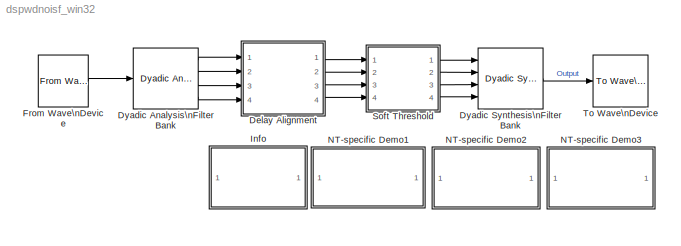
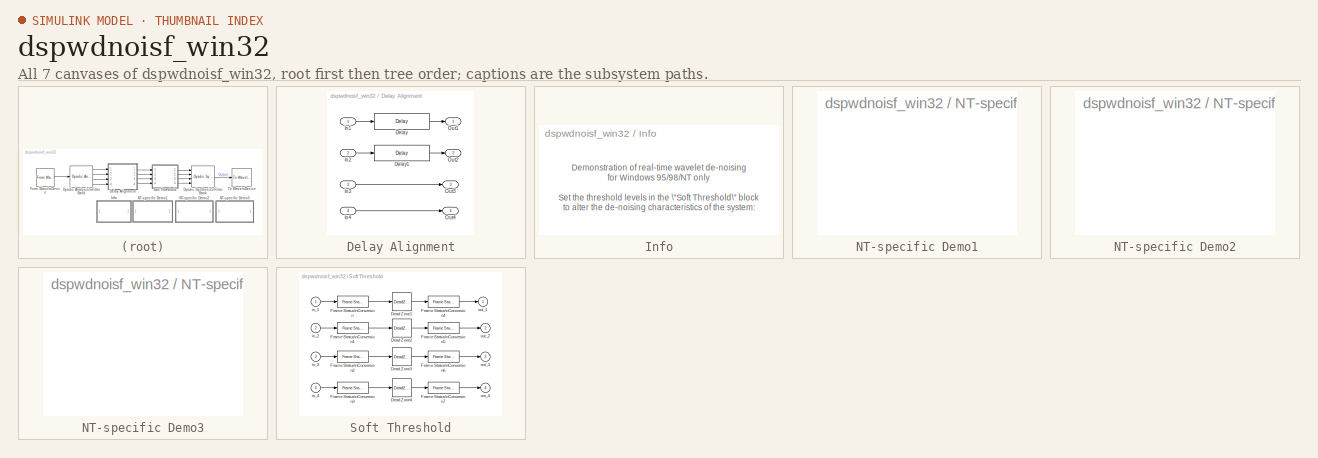
[diagram: thumbnail index - all 7 canvases of the model, root first then tree order]
MODEL dspwdnoisf_win32
KIND model
CONFIG AbsTol = auto
CONFIG FixedStep = auto
CONFIG MaxStep = auto
CONFIG MinStep = auto
CONFIG PreLoadFcn = load dspwlets;
CONFIG RelTol = 1e-3
CONFIG Solver = FixedStepDiscrete
CONFIG SolverMode = Auto
CONFIG StartTime = 0.0
CONFIG StopTime = inf
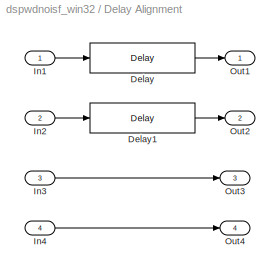
BLOCK [SubSystem] Delay Alignment
  Ports = [4, 4]
  TreatAsAtomicUnit = off
BLOCK [Reference] Delay Alignment/Delay  REF=dspsigops/Delay
  Ports = [1, 1]
  SourceBlock = dspsigops/Delay
  SourceType = Delay
  delay = 3*(length(lod)-1)
  dif_ic_for_ch = off
  dif_ic_for_dly = off
  dly_unit = Samples
  ic = 0
  ic_detail = on
  reset_popup = None
BLOCK [Reference] Delay Alignment/Delay1  REF=dspsigops/Delay
  Ports = [1, 1]
  SourceBlock = dspsigops/Delay
  SourceType = Delay
  delay = length(lod) - 1
  dif_ic_for_ch = off
  dif_ic_for_dly = off
  dly_unit = Samples
  ic = 0
  ic_detail = on
  reset_popup = None
BLOCK [Inport] Delay Alignment/In1
BLOCK [Inport] Delay Alignment/In2
  Port = 2
BLOCK [Inport] Delay Alignment/In3
  Port = 3
BLOCK [Inport] Delay Alignment/In4
  Port = 4
BLOCK [Outport] Delay Alignment/Out1
BLOCK [Outport] Delay Alignment/Out2
  Port = 2
BLOCK [Outport] Delay Alignment/Out3
  Port = 3
BLOCK [Outport] Delay Alignment/Out4
  Port = 4
BLOCK [Reference] Dyadic Analysis\nFilter Bank  REF=dspmlti4/Dyadic Analysis\nFilter Bank
  HPF = hid
  LPF = lod
  NumLevels = 3
  OrdRec_ordDec = [1 / 1]
  Order = 2
  Output = Multiple ports
  Ports = [1, 4]
  SourceBlock = dspmlti4/Dyadic Analysis\nFilter Bank
  SourceType = Dyadic Analysis Filter Bank
  Wname = User-defined
  tree = Asymmetric
BLOCK [Reference] Dyadic Synthesis\nFilter Bank  REF=dspmlti4/Dyadic Synthesis\nFilter Bank
  HPF = hir
  Input = Multiple ports
  LPF = lor
  NumLevels = 3
  OrdRec_ordDec = [1 / 1]
  Order = 2
  Ports = [4, 1]
  SourceBlock = dspmlti4/Dyadic Synthesis\nFilter Bank
  SourceType = Dyadic Synthesis Filter Bank
  Wname = User-defined
  tree = Asymmetric
BLOCK [Reference] From Wave\nDevice  REF=dspwin32/From Wave\nDevice
  Ports = [0, 1]
  QueueDuration = 2
  SampleRate = 22050
  SampleWidth = 16
  SamplesPerFrame = 128
  SourceBlock = dspwin32/From Wave\nDevice
  SourceType = From Wave Device
  Stereo = off
  UserRate = 16000
  dType = Double
  useDefaultDevice = on
BLOCK [SubSystem] Info
  MaskDisplay = disp('Info')
  MaskIconFrame = on
  MaskIconOpaque = on
  MaskIconRotate = none
  MaskIconUnits = autoscale
  MaskType = Frame-Based Simulation Info
  Ports = []
  TreatAsAtomicUnit = off
BLOCK [SubSystem] NT-specific Demo1
  MaskDisplay = disp('Sample-Based\\nDemo')
  MaskIconFrame = on
  MaskIconOpaque = on
  MaskIconRotate = none
  MaskIconUnits = autoscale
  MaskType = Sample-Based Demo
  OpenFcn = dspwdnois
  Ports = []
  TreatAsAtomicUnit = off
BLOCK [SubSystem] NT-specific Demo2
  MaskDisplay = disp('Frame-Based\\nDemo')
  MaskIconFrame = on
  MaskIconOpaque = on
  MaskIconRotate = none
  MaskIconUnits = autoscale
  MaskType = Frame-Based Demo
  OpenFcn = dspwdnoisf
  Ports = []
  TreatAsAtomicUnit = off
BLOCK [SubSystem] NT-specific Demo3
  MaskDisplay = disp('Fixed-Point\\nDemo')
  MaskIconFrame = on
  MaskIconOpaque = on
  MaskIconRotate = none
  MaskIconUnits = autoscale
  MaskType = Fixed-Point Demo
  OpenFcn = dspwdnoisfp
  Ports = []
  TreatAsAtomicUnit = off
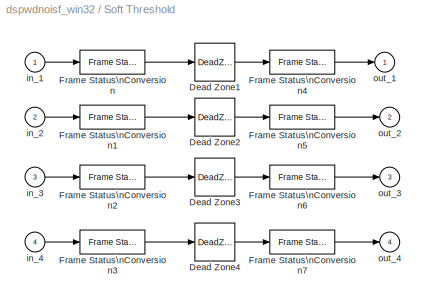
BLOCK [SubSystem] Soft Threshold
  MaskDescription = Apply a soft threshold (deadzone transfer function) to each signal in the decomposition.  First threshold applies to top-most filter bank output.
  MaskDisplay = text(.1,.9,'Dead Zone')\nplot(x,y)
  MaskEnableString = on
  MaskHelp = Vector of thresholds for each decomposition level.\n
  MaskIconFrame = on
  MaskIconOpaque = on
  MaskIconRotate = none
  MaskIconUnits = normalized
  MaskInitialization = x=([-1 1 NaN 0 0 NaN -1 -.5 .5 1]+1)/2*.7+.15;\ny=([0 0 NaN -1 1 NaN -1 0 0 1]+1)/2*.7+.05;
  MaskPromptString = Vector of thresholds for each level:
  MaskStyleString = edit
  MaskToolTipString = on
  MaskTunableValueString = on
  MaskType = Soft Threshold
  MaskValueString = [3 2 1 0]
  MaskVariables = st=@1;
  MaskVisibilityString = on
  Ports = [4, 4]
  ShowPortLabels = off
  TreatAsAtomicUnit = off
BLOCK [DeadZone] Soft Threshold/Dead Zone1
  LowerValue = -st(1)
  UpperValue = st(1)
  ZeroCross = off
BLOCK [DeadZone] Soft Threshold/Dead Zone2
  LowerValue = -st(2)
  UpperValue = st(2)
  ZeroCross = off
BLOCK [DeadZone] Soft Threshold/Dead Zone3
  LowerValue = -st(3)
  UpperValue = st(3)
  ZeroCross = off
BLOCK [DeadZone] Soft Threshold/Dead Zone4
  LowerValue = -st(4)
  UpperValue = st(4)
  ZeroCross = off
BLOCK [Reference] Soft Threshold/Frame Status\nConversion  REF=dspsigattribs/Frame Status\nConversion
  Ports = [1, 1]
  SourceBlock = dspsigattribs/Frame Status\nConversion
  SourceType = Frame Status Conversion
  growRefPort = off
  outframe = Sample-based
BLOCK [Reference] Soft Threshold/Frame Status\nConversion1  REF=dspsigattribs/Frame Status\nConversion
  Ports = [1, 1]
  SourceBlock = dspsigattribs/Frame Status\nConversion
  SourceType = Frame Status Conversion
  growRefPort = off
  outframe = Sample-based
BLOCK [Reference] Soft Threshold/Frame Status\nConversion2  REF=dspsigattribs/Frame Status\nConversion
  Ports = [1, 1]
  SourceBlock = dspsigattribs/Frame Status\nConversion
  SourceType = Frame Status Conversion
  growRefPort = off
  outframe = Sample-based
BLOCK [Reference] Soft Threshold/Frame Status\nConversion3  REF=dspsigattribs/Frame Status\nConversion
  Ports = [1, 1]
  SourceBlock = dspsigattribs/Frame Status\nConversion
  SourceType = Frame Status Conversion
  growRefPort = off
  outframe = Sample-based
BLOCK [Reference] Soft Threshold/Frame Status\nConversion4  REF=dspsigattribs/Frame Status\nConversion
  Ports = [1, 1]
  SourceBlock = dspsigattribs/Frame Status\nConversion
  SourceType = Frame Status Conversion
  growRefPort = off
  outframe = Frame-based
BLOCK [Reference] Soft Threshold/Frame Status\nConversion5  REF=dspsigattribs/Frame Status\nConversion
  Ports = [1, 1]
  SourceBlock = dspsigattribs/Frame Status\nConversion
  SourceType = Frame Status Conversion
  growRefPort = off
  outframe = Frame-based
BLOCK [Reference] Soft Threshold/Frame Status\nConversion6  REF=dspsigattribs/Frame Status\nConversion
  Ports = [1, 1]
  SourceBlock = dspsigattribs/Frame Status\nConversion
  SourceType = Frame Status Conversion
  growRefPort = off
  outframe = Frame-based
BLOCK [Reference] Soft Threshold/Frame Status\nConversion7  REF=dspsigattribs/Frame Status\nConversion
  Ports = [1, 1]
  SourceBlock = dspsigattribs/Frame Status\nConversion
  SourceType = Frame Status Conversion
  growRefPort = off
  outframe = Frame-based
BLOCK [Inport] Soft Threshold/in_1
BLOCK [Inport] Soft Threshold/in_2
  Port = 2
BLOCK [Inport] Soft Threshold/in_3
  Port = 3
BLOCK [Inport] Soft Threshold/in_4
  Port = 4
BLOCK [Outport] Soft Threshold/out_1
  InitialOutput = 0
BLOCK [Outport] Soft Threshold/out_2
  InitialOutput = 0
  Port = 2
BLOCK [Outport] Soft Threshold/out_3
  InitialOutput = 0
  Port = 3
BLOCK [Outport] Soft Threshold/out_4
  InitialOutput = 0
  Port = 4
BLOCK [Reference] To Wave\nDevice  REF=dspwin32/To Wave\nDevice
  Ports = [1]
  SourceBlock = dspwin32/To Wave\nDevice
  SourceType = To Wave Device
  bufDuration = 2
  enable24Bit = off
  initDelay = 0.1
  useDefaultDevice = on
ANNOTATION Info: Demonstration of real-time wavelet de-noising\nfor Windows 95/98/NT only\n\nSet the threshold levels in the \"Soft Threshold\" block\nto alter the de-noising characteristics of the system:\n\nThreshold=[0 0 0 0] -> No de-noising\n(perfect reconstruction)\n\nThreshold=[3 2 1 0] -> Moderate de-noising\n(removes small-scale content from signal)\n\n\nIf your PC cannot keep up with the sample rate,\ntr...<+237ch>
LINE Delay Alignment/Delay1:1 -> Delay Alignment/Out2:1
LINE Delay Alignment/Delay:1 -> Delay Alignment/Out1:1
LINE Delay Alignment/In1:1 -> Delay Alignment/Delay:1
LINE Delay Alignment/In2:1 -> Delay Alignment/Delay1:1
LINE Delay Alignment/In3:1 -> Delay Alignment/Out3:1
LINE Delay Alignment/In4:1 -> Delay Alignment/Out4:1
LINE Delay Alignment:1 -> Soft Threshold:1
LINE Delay Alignment:2 -> Soft Threshold:2
LINE Delay Alignment:3 -> Soft Threshold:3
LINE Delay Alignment:4 -> Soft Threshold:4
LINE Dyadic Analysis\nFilter Bank:1 -> Delay Alignment:1
LINE Dyadic Analysis\nFilter Bank:2 -> Delay Alignment:2
LINE Dyadic Analysis\nFilter Bank:3 -> Delay Alignment:3
LINE Dyadic Analysis\nFilter Bank:4 -> Delay Alignment:4
LINE Dyadic Synthesis\nFilter Bank:1 -> To Wave\nDevice:1
LINE From Wave\nDevice:1 -> Dyadic Analysis\nFilter Bank:1
LINE Soft Threshold/Dead Zone1:1 -> Soft Threshold/Frame Status\nConversion4:1
LINE Soft Threshold/Dead Zone2:1 -> Soft Threshold/Frame Status\nConversion5:1
LINE Soft Threshold/Dead Zone3:1 -> Soft Threshold/Frame Status\nConversion6:1
LINE Soft Threshold/Dead Zone4:1 -> Soft Threshold/Frame Status\nConversion7:1
LINE Soft Threshold/Frame Status\nConversion1:1 -> Soft Threshold/Dead Zone2:1
LINE Soft Threshold/Frame Status\nConversion2:1 -> Soft Threshold/Dead Zone3:1
LINE Soft Threshold/Frame Status\nConversion3:1 -> Soft Threshold/Dead Zone4:1
LINE Soft Threshold/Frame Status\nConversion4:1 -> Soft Threshold/out_1:1
LINE Soft Threshold/Frame Status\nConversion5:1 -> Soft Threshold/out_2:1
LINE Soft Threshold/Frame Status\nConversion6:1 -> Soft Threshold/out_3:1
LINE Soft Threshold/Frame Status\nConversion7:1 -> Soft Threshold/out_4:1
LINE Soft Threshold/Frame Status\nConversion:1 -> Soft Threshold/Dead Zone1:1
LINE Soft Threshold/in_1:1 -> Soft Threshold/Frame Status\nConversion:1
LINE Soft Threshold/in_2:1 -> Soft Threshold/Frame Status\nConversion1:1
LINE Soft Threshold/in_3:1 -> Soft Threshold/Frame Status\nConversion2:1
LINE Soft Threshold/in_4:1 -> Soft Threshold/Frame Status\nConversion3:1
LINE Soft Threshold:1 -> Dyadic Synthesis\nFilter Bank:1
LINE Soft Threshold:2 -> Dyadic Synthesis\nFilter Bank:2
LINE Soft Threshold:3 -> Dyadic Synthesis\nFilter Bank:3
LINE Soft Threshold:4 -> Dyadic Synthesis\nFilter Bank:4
